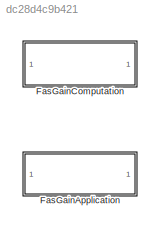
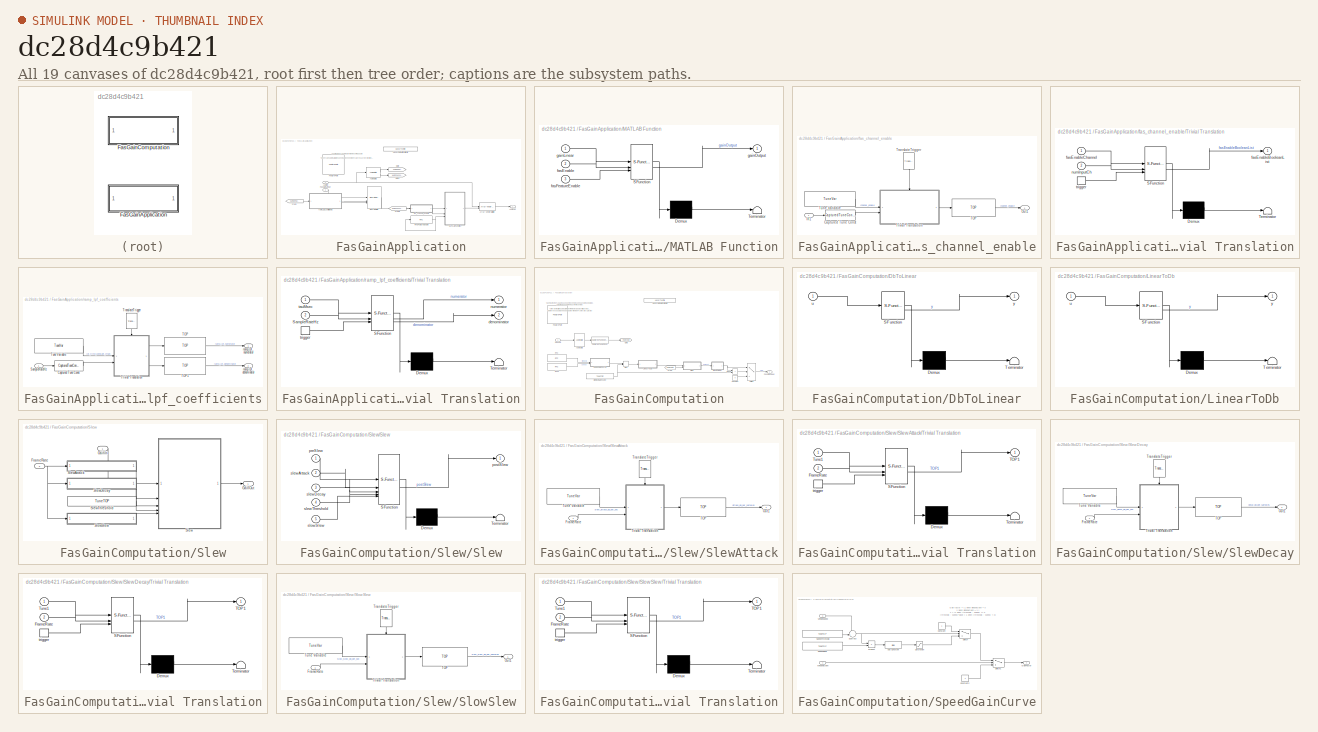
[diagram: thumbnail index - all 19 canvases of the model, root first then tree order]
MODEL slx_dc28d4c9b421
KIND library
CONFIG AbsTol = auto
CONFIG EnableMultiTasking = off
CONFIG FixedStep = auto
CONFIG MaxStep = auto
CONFIG MinStep = auto
CONFIG RelTol = 1e-3
CONFIG SampleTimeConstraint = Unconstrained
CONFIG SolverName = VariableStepAuto
CONFIG StartTime = 0.0
CONFIG StopTime = 10.0
BLOCK [SubSystem] FasGainApplication
BLOCK [Reference] FasGainApplication/Array-Vector Multiply  REF=dspmtrx3/Array-Vector
Multiply
  SourceBlock = dspmtrx3/Array-Vector\nMultiply
  SourceType = Array-Vector Multiply
BLOCK [Reference] FasGainApplication/Audio Stats  REF=AudioStats/AudioStats
  SourceBlock = AudioStats/AudioStats
  SourceProductName = Bose Talaria
  SourceType = Talaria Audio Statistics
BLOCK [Inport] FasGainApplication/AudioIn
BLOCK [Outport] FasGainApplication/AudioOut
BLOCK [DiscreteFilter] FasGainApplication/Discrete Filter
  DenominatorSource = Input port
  FilterStructure = Direct form II transposed
  InputPortMap = u0,p1,p3
  InputProcessing = Columns as channels (frame based)
  NumeratorSource = Input port
  a0EqualsOne = on
BLOCK [Inport] FasGainApplication/FasGainLinear
  OutDataTypeStr = single
  Port = 2
BLOCK [Reference] FasGainApplication/FeaturePath  REF=FeaturePath/FeaturePath
  SourceBlock = FeaturePath/FeaturePath
  SourceProductName = Bose Talaria
  SourceType = Talaria Feature Path
BLOCK [From] FasGainApplication/From
  GotoTag = SampleRateHz
BLOCK [From] FasGainApplication/From1
  GotoTag = NumChannelsIn
BLOCK [Goto] FasGainApplication/Goto
  GotoTag = SampleRateHz
BLOCK [Goto] FasGainApplication/Goto1
  GotoTag = NumChannelsIn
BLOCK [Reference] FasGainApplication/HandyDefaultConfigFile  REF=HandyTextFile/HandyTextFile
  SourceBlock = HandyTextFile/HandyTextFile
  SourceProductName = Bose Talaria
  SourceType = Talaria Handy Text File
BLOCK [SubSystem] FasGainApplication/MATLAB Function
  ErrorFcn = Stateflow.Translate.translate
  PermitHierarchicalResolution = ExplicitOnly
  SFBlockType = MATLAB Function
  TreatAsAtomicUnit = on
BLOCK [Demux] FasGainApplication/MATLAB Function/ Demux 
  Outputs = 1
BLOCK [S-Function] FasGainApplication/MATLAB Function/ SFunction 
  EnableBusSupport = off
  FunctionName = sf_sfun
  PortCounts = [3 2]
  SFcnIsStateOwnerBlock = off
  SFunctionDeploymentMode = off
  Tag = Stateflow S-Function 3
BLOCK [Terminator] FasGainApplication/MATLAB Function/ Terminator 
BLOCK [Inport] FasGainApplication/MATLAB Function/fasEnable
  Port = 2
BLOCK [Inport] FasGainApplication/MATLAB Function/fasFeatureEnable
  Port = 3
BLOCK [Inport] FasGainApplication/MATLAB Function/gainLinear
BLOCK [Outport] FasGainApplication/MATLAB Function/gainOutput
BLOCK [Reference] FasGainApplication/RTCFeatureEnable  REF=RTC/RTC
  SourceBlock = RTC/RTC
  SourceProductName = Bose Talaria
  SourceType = Talaria RTC Receive
BLOCK [SubSystem] FasGainApplication/fas_channel_enable
BLOCK [Reference] FasGainApplication/fas_channel_enable/Captured Tune Const  REF=TuneVar/CapturedTuneConst
  SourceBlock = TuneVar/CapturedTuneConst
  SourceProductName = Bose Talaria
  SourceType = Talaria Captured Constant
BLOCK [Inport] FasGainApplication/fas_channel_enable/In1
BLOCK [Outport] FasGainApplication/fas_channel_enable/Out1
  VectorParamsAs1DForOutWhenUnconnected = off
BLOCK [Reference] FasGainApplication/fas_channel_enable/TOP  REF=TOP/TOP
  SourceBlock = TOP/TOP
  SourceProductName = Bose Talaria
  SourceType = Talaria Target Overlay Parameter
BLOCK [Reference] FasGainApplication/fas_channel_enable/TranslateTrigger  REF=TuneVar/TranslateTrigger
  NameLocation = left
  SourceBlock = TuneVar/TranslateTrigger
  SourceProductName = Bose Talaria
  SourceType = Talaria Translate Trigger
BLOCK [SubSystem] FasGainApplication/fas_channel_enable/Trivial Translation
  ErrorFcn = Stateflow.Translate.translate
  PermitHierarchicalResolution = ExplicitOnly
  SFBlockType = MATLAB Function
  TreatAsAtomicUnit = on
BLOCK [Demux] FasGainApplication/fas_channel_enable/Trivial Translation/ Demux 
  Outputs = 1
BLOCK [S-Function] FasGainApplication/fas_channel_enable/Trivial Translation/ SFunction 
  EnableBusSupport = off
  FunctionName = sf_sfun
  PortCounts = [3 2]
  SFcnIsStateOwnerBlock = off
  SFunctionDeploymentMode = off
  Tag = Stateflow S-Function 4
BLOCK [Terminator] FasGainApplication/fas_channel_enable/Trivial Translation/ Terminator 
BLOCK [Outport] FasGainApplication/fas_channel_enable/Trivial Translation/fasEnableBooleanList
  VectorParamsAs1DForOutWhenUnconnected = off
BLOCK [Inport] FasGainApplication/fas_channel_enable/Trivial Translation/fasEnableChannel
BLOCK [Inport] FasGainApplication/fas_channel_enable/Trivial Translation/numInputCh
  Port = 2
BLOCK [TriggerPort] FasGainApplication/fas_channel_enable/Trivial Translation/trigger
  ShowOutputPort = on
  StatesWhenEnabling = held
  TriggerType = function-call
  VariantControl = Variant
BLOCK [Reference] FasGainApplication/fas_channel_enable/Tune Variable  REF=TuneVar/TuneVar
  SourceBlock = TuneVar/TuneVar
  SourceProductName = Bose Talaria
  SourceType = Talaria Tune Variable
BLOCK [SubSystem] FasGainApplication/ramp_lpf_coefficients
BLOCK [Reference] FasGainApplication/ramp_lpf_coefficients/Captured Tune Const  REF=TuneVar/CapturedTuneConst
  SourceBlock = TuneVar/CapturedTuneConst
  SourceProductName = Bose Talaria
  SourceType = Talaria Captured Constant
BLOCK [Inport] FasGainApplication/ramp_lpf_coefficients/SampleRateHz
BLOCK [Reference] FasGainApplication/ramp_lpf_coefficients/TOP  REF=TOP/TOP
  SourceBlock = TOP/TOP
  SourceProductName = Bose Talaria
  SourceType = Talaria Target Overlay Parameter
BLOCK [Reference] FasGainApplication/ramp_lpf_coefficients/TOP1  REF=TOP/TOP
  SourceBlock = TOP/TOP
  SourceProductName = Bose Talaria
  SourceType = Talaria Target Overlay Parameter
BLOCK [Reference] FasGainApplication/ramp_lpf_coefficients/TranslateTrigger  REF=TuneVar/TranslateTrigger
  NameLocation = left
  SourceBlock = TuneVar/TranslateTrigger
  SourceProductName = Bose Talaria
  SourceType = Talaria Translate Trigger
BLOCK [SubSystem] FasGainApplication/ramp_lpf_coefficients/Trivial Translation
  ErrorFcn = Stateflow.Translate.translate
  PermitHierarchicalResolution = ExplicitOnly
  SFBlockType = MATLAB Function
  TreatAsAtomicUnit = on
BLOCK [Demux] FasGainApplication/ramp_lpf_coefficients/Trivial Translation/ Demux 
  Outputs = 1
BLOCK [S-Function] FasGainApplication/ramp_lpf_coefficients/Trivial Translation/ SFunction 
  EnableBusSupport = off
  FunctionName = sf_sfun
  PortCounts = [3 3]
  SFcnIsStateOwnerBlock = off
  SFunctionDeploymentMode = off
  Tag = Stateflow S-Function 8
BLOCK [Terminator] FasGainApplication/ramp_lpf_coefficients/Trivial Translation/ Terminator 
BLOCK [Inport] FasGainApplication/ramp_lpf_coefficients/Trivial Translation/SampleRateHz
  Port = 2
BLOCK [Outport] FasGainApplication/ramp_lpf_coefficients/Trivial Translation/denominator
  Port = 2
BLOCK [Outport] FasGainApplication/ramp_lpf_coefficients/Trivial Translation/numerator
  VectorParamsAs1DForOutWhenUnconnected = off
BLOCK [Inport] FasGainApplication/ramp_lpf_coefficients/Trivial Translation/tauMsec
BLOCK [TriggerPort] FasGainApplication/ramp_lpf_coefficients/Trivial Translation/trigger
  ShowOutputPort = on
  StatesWhenEnabling = held
  TriggerType = function-call
  VariantControl = Variant
BLOCK [Reference] FasGainApplication/ramp_lpf_coefficients/Tune Variable  REF=TuneVar/TuneVar
  SourceBlock = TuneVar/TuneVar
  SourceProductName = Bose Talaria
  SourceType = Talaria Tune Variable
BLOCK [Outport] FasGainApplication/ramp_lpf_coefficients/ramp_lpf_denominator
  Port = 2
BLOCK [Outport] FasGainApplication/ramp_lpf_coefficients/ramp_lpf_numerator
  VectorParamsAs1DForOutWhenUnconnected = off
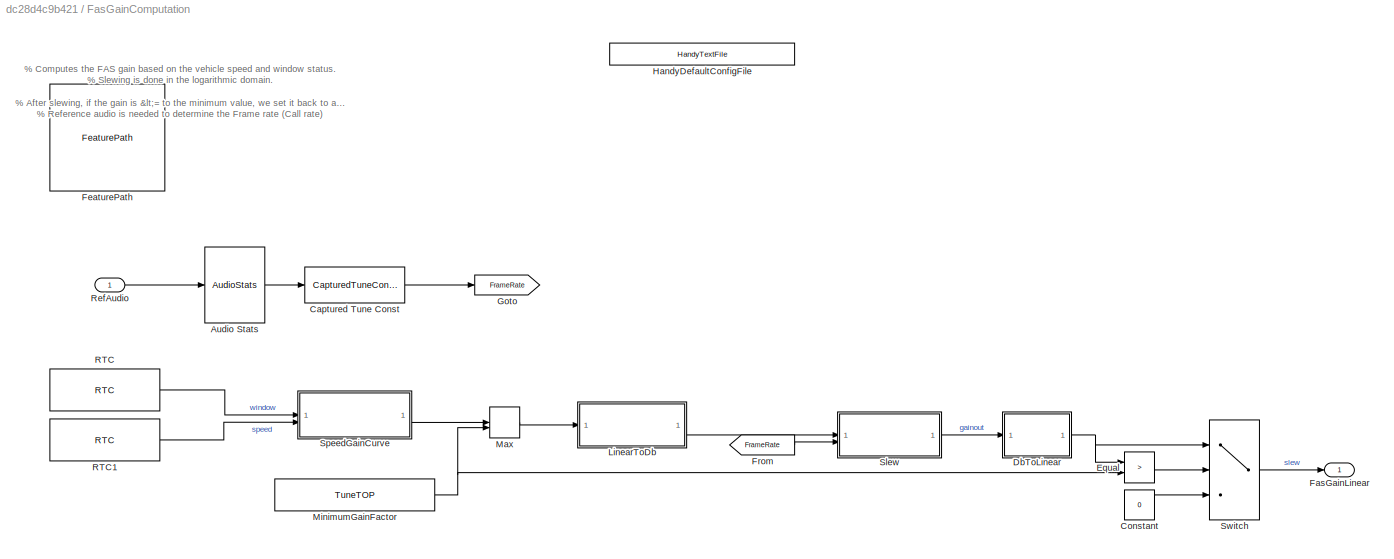
BLOCK [SubSystem] FasGainComputation
BLOCK [Reference] FasGainComputation/Audio Stats  REF=AudioStats/AudioStats
  SourceBlock = AudioStats/AudioStats
  SourceProductName = Bose Talaria
  SourceType = Talaria Audio Statistics
BLOCK [Reference] FasGainComputation/Captured Tune Const  REF=TuneVar/CapturedTuneConst
  SourceBlock = TuneVar/CapturedTuneConst
  SourceProductName = Bose Talaria
  SourceType = Talaria Captured Constant
BLOCK [Constant] FasGainComputation/Constant
  OutDataTypeStr = single
  Value = 0
BLOCK [SubSystem] FasGainComputation/DbToLinear
  ErrorFcn = Stateflow.Translate.translate
  PermitHierarchicalResolution = ExplicitOnly
  SFBlockType = MATLAB Function
  TreatAsAtomicUnit = on
BLOCK [Demux] FasGainComputation/DbToLinear/ Demux 
  Outputs = 1
BLOCK [S-Function] FasGainComputation/DbToLinear/ SFunction 
  EnableBusSupport = off
  FunctionName = sf_sfun
  PortCounts = [1 2]
  SFcnIsStateOwnerBlock = off
  SFunctionDeploymentMode = off
  Tag = Stateflow S-Function 1
BLOCK [Terminator] FasGainComputation/DbToLinear/ Terminator 
BLOCK [Inport] FasGainComputation/DbToLinear/u
BLOCK [Outport] FasGainComputation/DbToLinear/y
BLOCK [RelationalOperator] FasGainComputation/Equal
  InputSameDT = off
  Operator = >
  OutDataTypeStr = boolean
  RndMeth = Simplest
BLOCK [Outport] FasGainComputation/FasGainLinear
BLOCK [Reference] FasGainComputation/FeaturePath  REF=FeaturePath/FeaturePath
  SourceBlock = FeaturePath/FeaturePath
  SourceProductName = Bose Talaria
  SourceType = Talaria Feature Path
BLOCK [From] FasGainComputation/From
  GotoTag = FrameRate
BLOCK [Goto] FasGainComputation/Goto
  GotoTag = FrameRate
BLOCK [Reference] FasGainComputation/HandyDefaultConfigFile  REF=HandyTextFile/HandyTextFile
  SourceBlock = HandyTextFile/HandyTextFile
  SourceProductName = Bose Talaria
  SourceType = Talaria Handy Text File
BLOCK [SubSystem] FasGainComputation/LinearToDb
  ErrorFcn = Stateflow.Translate.translate
  PermitHierarchicalResolution = ExplicitOnly
  SFBlockType = MATLAB Function
  TreatAsAtomicUnit = on
BLOCK [Demux] FasGainComputation/LinearToDb/ Demux 
  Outputs = 1
BLOCK [S-Function] FasGainComputation/LinearToDb/ SFunction 
  EnableBusSupport = off
  FunctionName = sf_sfun
  PortCounts = [1 2]
  SFcnIsStateOwnerBlock = off
  SFunctionDeploymentMode = off
  Tag = Stateflow S-Function 2
BLOCK [Terminator] FasGainComputation/LinearToDb/ Terminator 
BLOCK [Inport] FasGainComputation/LinearToDb/u
BLOCK [Outport] FasGainComputation/LinearToDb/y
BLOCK [MinMax] FasGainComputation/Max
  Function = max
  Inputs = 2
BLOCK [Reference] FasGainComputation/MinimumGainFactor  REF=TuneVar/TuneTOP
  SourceBlock = TuneVar/TuneTOP
  SourceProductName = Bose Talaria
  SourceType = Talaria Trivial Tune TOP
BLOCK [Reference] FasGainComputation/RTC  REF=RTC/RTC
  SourceBlock = RTC/RTC
  SourceProductName = Bose Talaria
  SourceType = Talaria RTC Receive
BLOCK [Reference] FasGainComputation/RTC1  REF=RTC/RTC
  SourceBlock = RTC/RTC
  SourceProductName = Bose Talaria
  SourceType = Talaria RTC Receive
BLOCK [Inport] FasGainComputation/RefAudio
BLOCK [SubSystem] FasGainComputation/Slew
BLOCK [Inport] FasGainComputation/Slew/FrameRate
  Port = 2
BLOCK [Inport] FasGainComputation/Slew/GainIn
BLOCK [Outport] FasGainComputation/Slew/GainOut
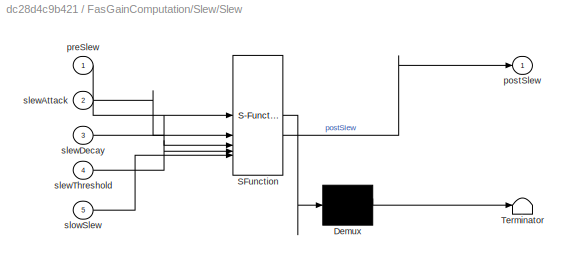
BLOCK [SubSystem] FasGainComputation/Slew/Slew
  ErrorFcn = Stateflow.Translate.translate
  PermitHierarchicalResolution = ExplicitOnly
  SFBlockType = MATLAB Function
  TreatAsAtomicUnit = on
BLOCK [Demux] FasGainComputation/Slew/Slew/ Demux 
  Outputs = 1
BLOCK [S-Function] FasGainComputation/Slew/Slew/ SFunction 
  EnableBusSupport = off
  FunctionName = sf_sfun
  PortCounts = [5 2]
  SFcnIsStateOwnerBlock = off
  SFunctionDeploymentMode = off
  Tag = Stateflow S-Function 9
BLOCK [Terminator] FasGainComputation/Slew/Slew/ Terminator 
BLOCK [Outport] FasGainComputation/Slew/Slew/postSlew
  VectorParamsAs1DForOutWhenUnconnected = off
BLOCK [Inport] FasGainComputation/Slew/Slew/preSlew
BLOCK [Inport] FasGainComputation/Slew/Slew/slewAttack
  Port = 2
BLOCK [Inport] FasGainComputation/Slew/Slew/slewDecay
  Port = 3
BLOCK [Inport] FasGainComputation/Slew/Slew/slewThreshold
  Port = 4
BLOCK [Inport] FasGainComputation/Slew/Slew/slowSlew
  Port = 5
BLOCK [SubSystem] FasGainComputation/Slew/SlewAttack
BLOCK [Inport] FasGainComputation/Slew/SlewAttack/FrameRate
BLOCK [Outport] FasGainComputation/Slew/SlewAttack/Out1
  VectorParamsAs1DForOutWhenUnconnected = off
BLOCK [Reference] FasGainComputation/Slew/SlewAttack/TOP  REF=TOP/TOP
  SourceBlock = TOP/TOP
  SourceProductName = Bose Talaria
  SourceType = Talaria Target Overlay Parameter
BLOCK [Reference] FasGainComputation/Slew/SlewAttack/TranslateTrigger  REF=TuneVar/TranslateTrigger
  NameLocation = left
  SourceBlock = TuneVar/TranslateTrigger
  SourceProductName = Bose Talaria
  SourceType = Talaria Translate Trigger
BLOCK [SubSystem] FasGainComputation/Slew/SlewAttack/Trivial Translation
  ErrorFcn = Stateflow.Translate.translate
  PermitHierarchicalResolution = ExplicitOnly
  SFBlockType = MATLAB Function
  TreatAsAtomicUnit = on
BLOCK [Demux] FasGainComputation/Slew/SlewAttack/Trivial Translation/ Demux 
  Outputs = 1
BLOCK [S-Function] FasGainComputation/Slew/SlewAttack/Trivial Translation/ SFunction 
  EnableBusSupport = off
  FunctionName = sf_sfun
  PortCounts = [3 2]
  SFcnIsStateOwnerBlock = off
  SFunctionDeploymentMode = off
  Tag = Stateflow S-Function 5
BLOCK [Terminator] FasGainComputation/Slew/SlewAttack/Trivial Translation/ Terminator 
BLOCK [Inport] FasGainComputation/Slew/SlewAttack/Trivial Translation/FrameRate
  Port = 2
BLOCK [Outport] FasGainComputation/Slew/SlewAttack/Trivial Translation/TOP1
  VectorParamsAs1DForOutWhenUnconnected = off
BLOCK [Inport] FasGainComputation/Slew/SlewAttack/Trivial Translation/Tune1
BLOCK [TriggerPort] FasGainComputation/Slew/SlewAttack/Trivial Translation/trigger
  ShowOutputPort = on
  StatesWhenEnabling = held
  TriggerType = function-call
  VariantControl = Variant
BLOCK [Reference] FasGainComputation/Slew/SlewAttack/Tune Variable  REF=TuneVar/TuneVar
  SourceBlock = TuneVar/TuneVar
  SourceProductName = Bose Talaria
  SourceType = Talaria Tune Variable
BLOCK [SubSystem] FasGainComputation/Slew/SlewDecay
BLOCK [Inport] FasGainComputation/Slew/SlewDecay/FrameRate
BLOCK [Outport] FasGainComputation/Slew/SlewDecay/Out1
  VectorParamsAs1DForOutWhenUnconnected = off
BLOCK [Reference] FasGainComputation/Slew/SlewDecay/TOP  REF=TOP/TOP
  SourceBlock = TOP/TOP
  SourceProductName = Bose Talaria
  SourceType = Talaria Target Overlay Parameter
BLOCK [Reference] FasGainComputation/Slew/SlewDecay/TranslateTrigger  REF=TuneVar/TranslateTrigger
  NameLocation = left
  SourceBlock = TuneVar/TranslateTrigger
  SourceProductName = Bose Talaria
  SourceType = Talaria Translate Trigger
BLOCK [SubSystem] FasGainComputation/Slew/SlewDecay/Trivial Translation
  ErrorFcn = Stateflow.Translate.translate
  PermitHierarchicalResolution = ExplicitOnly
  SFBlockType = MATLAB Function
  TreatAsAtomicUnit = on
BLOCK [Demux] FasGainComputation/Slew/SlewDecay/Trivial Translation/ Demux 
  Outputs = 1
BLOCK [S-Function] FasGainComputation/Slew/SlewDecay/Trivial Translation/ SFunction 
  EnableBusSupport = off
  FunctionName = sf_sfun
  PortCounts = [3 2]
  SFcnIsStateOwnerBlock = off
  SFunctionDeploymentMode = off
  Tag = Stateflow S-Function 6
BLOCK [Terminator] FasGainComputation/Slew/SlewDecay/Trivial Translation/ Terminator 
BLOCK [Inport] FasGainComputation/Slew/SlewDecay/Trivial Translation/FrameRate
  Port = 2
BLOCK [Outport] FasGainComputation/Slew/SlewDecay/Trivial Translation/TOP1
  VectorParamsAs1DForOutWhenUnconnected = off
BLOCK [Inport] FasGainComputation/Slew/SlewDecay/Trivial Translation/Tune1
BLOCK [TriggerPort] FasGainComputation/Slew/SlewDecay/Trivial Translation/trigger
  ShowOutputPort = on
  StatesWhenEnabling = held
  TriggerType = function-call
  VariantControl = Variant
BLOCK [Reference] FasGainComputation/Slew/SlewDecay/Tune Variable  REF=TuneVar/TuneVar
  SourceBlock = TuneVar/TuneVar
  SourceProductName = Bose Talaria
  SourceType = Talaria Tune Variable
BLOCK [Reference] FasGainComputation/Slew/SlewThreshold  REF=TuneVar/TuneTOP
  SourceBlock = TuneVar/TuneTOP
  SourceProductName = Bose Talaria
  SourceType = Talaria Trivial Tune TOP
BLOCK [SubSystem] FasGainComputation/Slew/SlowSlew
BLOCK [Inport] FasGainComputation/Slew/SlowSlew/FrameRate
BLOCK [Outport] FasGainComputation/Slew/SlowSlew/Out1
  VectorParamsAs1DForOutWhenUnconnected = off
BLOCK [Reference] FasGainComputation/Slew/SlowSlew/TOP  REF=TOP/TOP
  SourceBlock = TOP/TOP
  SourceProductName = Bose Talaria
  SourceType = Talaria Target Overlay Parameter
BLOCK [Reference] FasGainComputation/Slew/SlowSlew/TranslateTrigger  REF=TuneVar/TranslateTrigger
  NameLocation = left
  SourceBlock = TuneVar/TranslateTrigger
  SourceProductName = Bose Talaria
  SourceType = Talaria Translate Trigger
BLOCK [SubSystem] FasGainComputation/Slew/SlowSlew/Trivial Translation
  ErrorFcn = Stateflow.Translate.translate
  PermitHierarchicalResolution = ExplicitOnly
  SFBlockType = MATLAB Function
  TreatAsAtomicUnit = on
BLOCK [Demux] FasGainComputation/Slew/SlowSlew/Trivial Translation/ Demux 
  Outputs = 1
BLOCK [S-Function] FasGainComputation/Slew/SlowSlew/Trivial Translation/ SFunction 
  EnableBusSupport = off
  FunctionName = sf_sfun
  PortCounts = [3 2]
  SFcnIsStateOwnerBlock = off
  SFunctionDeploymentMode = off
  Tag = Stateflow S-Function 7
BLOCK [Terminator] FasGainComputation/Slew/SlowSlew/Trivial Translation/ Terminator 
BLOCK [Inport] FasGainComputation/Slew/SlowSlew/Trivial Translation/FrameRate
  Port = 2
BLOCK [Outport] FasGainComputation/Slew/SlowSlew/Trivial Translation/TOP1
  VectorParamsAs1DForOutWhenUnconnected = off
BLOCK [Inport] FasGainComputation/Slew/SlowSlew/Trivial Translation/Tune1
BLOCK [TriggerPort] FasGainComputation/Slew/SlowSlew/Trivial Translation/trigger
  ShowOutputPort = on
  StatesWhenEnabling = held
  TriggerType = function-call
  VariantControl = Variant
BLOCK [Reference] FasGainComputation/Slew/SlowSlew/Tune Variable  REF=TuneVar/TuneVar
  SourceBlock = TuneVar/TuneVar
  SourceProductName = Bose Talaria
  SourceType = Talaria Tune Variable
BLOCK [SubSystem] FasGainComputation/SpeedGainCurve
BLOCK [Bias] FasGainComputation/SpeedGainCurve/Add Constant
  Bias = single(1)
  SaturateOnIntegerOverflow = off
BLOCK [Constant] FasGainComputation/SpeedGainCurve/Constant
  OutDataTypeStr = single
BLOCK [Constant] FasGainComputation/SpeedGainCurve/Constant2
  OutDataTypeStr = single
BLOCK [Outport] FasGainComputation/SpeedGainCurve/GainFactor
BLOCK [Product] FasGainComputation/SpeedGainCurve/Product
BLOCK [Saturate] FasGainComputation/SpeedGainCurve/Saturation
  LowerLimit = 0
  OutDataTypeStr = single
  UpperLimit = 1
BLOCK [Reference] FasGainComputation/SpeedGainCurve/SpeedSlope  REF=TuneVar/TuneTOP
  SourceBlock = TuneVar/TuneTOP
  SourceProductName = Bose Talaria
  SourceType = Talaria Trivial Tune TOP
BLOCK [Reference] FasGainComputation/SpeedGainCurve/SpeedThreshold  REF=TuneVar/TuneTOP
  SourceBlock = TuneVar/TuneTOP
  SourceProductName = Bose Talaria
  SourceType = Talaria Trivial Tune TOP
BLOCK [Sum] FasGainComputation/SpeedGainCurve/Subtract
  Inputs = -+|
BLOCK [Switch] FasGainComputation/SpeedGainCurve/Switch
  InputSameDT = off
  OutDataTypeStr = single
  SaturateOnIntegerOverflow = off
BLOCK [Switch] FasGainComputation/SpeedGainCurve/Switch1
  Criteria = u2 ~= 0
  InputSameDT = off
  OutDataTypeStr = single
  SaturateOnIntegerOverflow = off
BLOCK [Inport] FasGainComputation/SpeedGainCurve/VehicleSpeed
  Port = 2
BLOCK [Inport] FasGainComputation/SpeedGainCurve/WindowOpen
BLOCK [Switch] FasGainComputation/Switch
  Criteria = u2 > Threshold
  InputSameDT = off
  SaturateOnIntegerOverflow = off
ANNOTATION FasGainApplication: % Applies the FAS gain factor to the incoming audio % The FAS enable is a list of channels which need the FAS pressure protection. FAS is disabled for all the remaining channels.
ANNOTATION FasGainComputation: % Computes the FAS gain based on the vehicle speed and window status. % Slewing is done in the logarithmic domain. % After slewing, if the gain is <= to the minimum value, we set it back to a linear gain of 0 % Reference audio is needed to determine the Frame rate (Call rate)
ANNOTATION FasGainComputation/SpeedGainCurve: Gain factor = {1 when windowOpen = 0 x when windowOpen = 1 } x = {1 when (threshold - speed) >= 0 (threshold - speed)*slope + 1 when (threshold - speed) < 0}
LINE FasGainApplication/Array-Vector Multiply:1 -> FasGainApplication/AudioOut:1
LINE FasGainApplication/Audio Stats:1 -> FasGainApplication/Goto:1
LINE FasGainApplication/Audio Stats:2 -> FasGainApplication/Goto1:1
NET FasGainApplication/AudioIn:1 -> FasGainApplication/Array-Vector Multiply:1, FasGainApplication/Audio Stats:1
LINE FasGainApplication/Discrete Filter:1 -> FasGainApplication/MATLAB Function:1
LINE FasGainApplication/FasGainLinear:1 -> FasGainApplication/Discrete Filter:1
LINE FasGainApplication/From1:1 -> FasGainApplication/fas_channel_enable:1
LINE FasGainApplication/From:1 -> FasGainApplication/ramp_lpf_coefficients:1
LINE FasGainApplication/MATLAB Function:1 -> FasGainApplication/Array-Vector Multiply:2
NET FasGainApplication/RTCFeatureEnable:1 -> FasGainApplication/MATLAB Function:3, FasGainApplication/RTCFeatureEnable:1
LINE FasGainApplication/fas_channel_enable/Captured Tune Const:1 -> FasGainApplication/fas_channel_enable/Trivial Translation:2
LINE FasGainApplication/fas_channel_enable/In1:1 -> FasGainApplication/fas_channel_enable/Captured Tune Const:1
LINE FasGainApplication/fas_channel_enable/TOP:1 -> FasGainApplication/fas_channel_enable/Out1:1
LINE FasGainApplication/fas_channel_enable/TranslateTrigger:1 -> FasGainApplication/fas_channel_enable/Trivial Translation:trigger
LINE FasGainApplication/fas_channel_enable/Trivial Translation:1 -> FasGainApplication/fas_channel_enable/TOP:1
LINE FasGainApplication/fas_channel_enable/Tune Variable:1 -> FasGainApplication/fas_channel_enable/Trivial Translation:1
LINE FasGainApplication/fas_channel_enable:1 -> FasGainApplication/MATLAB Function:2
LINE FasGainApplication/ramp_lpf_coefficients/Captured Tune Const:1 -> FasGainApplication/ramp_lpf_coefficients/Trivial Translation:2
LINE FasGainApplication/ramp_lpf_coefficients/SampleRateHz:1 -> FasGainApplication/ramp_lpf_coefficients/Captured Tune Const:1
LINE FasGainApplication/ramp_lpf_coefficients/TOP1:1 -> FasGainApplication/ramp_lpf_coefficients/ramp_lpf_denominator:1
LINE FasGainApplication/ramp_lpf_coefficients/TOP:1 -> FasGainApplication/ramp_lpf_coefficients/ramp_lpf_numerator:1
LINE FasGainApplication/ramp_lpf_coefficients/TranslateTrigger:1 -> FasGainApplication/ramp_lpf_coefficients/Trivial Translation:trigger
LINE FasGainApplication/ramp_lpf_coefficients/Trivial Translation:1 -> FasGainApplication/ramp_lpf_coefficients/TOP:1
LINE FasGainApplication/ramp_lpf_coefficients/Trivial Translation:2 -> FasGainApplication/ramp_lpf_coefficients/TOP1:1
LINE FasGainApplication/ramp_lpf_coefficients/Tune Variable:1 -> FasGainApplication/ramp_lpf_coefficients/Trivial Translation:1
LINE FasGainApplication/ramp_lpf_coefficients:1 -> FasGainApplication/Discrete Filter:2
LINE FasGainApplication/ramp_lpf_coefficients:2 -> FasGainApplication/Discrete Filter:3
LINE FasGainComputation/Audio Stats:1 -> FasGainComputation/Captured Tune Const:1
LINE FasGainComputation/Captured Tune Const:1 -> FasGainComputation/Goto:1
LINE FasGainComputation/Constant:1 -> FasGainComputation/Switch:3
NET FasGainComputation/DbToLinear:1 -> FasGainComputation/Equal:1, FasGainComputation/Switch:1
LINE FasGainComputation/Equal:1 -> FasGainComputation/Switch:2
LINE FasGainComputation/From:1 -> FasGainComputation/Slew:2
LINE FasGainComputation/LinearToDb:1 -> FasGainComputation/Slew:1
LINE FasGainComputation/Max:1 -> FasGainComputation/LinearToDb:1
NET FasGainComputation/MinimumGainFactor:1 -> FasGainComputation/Equal:2, FasGainComputation/Max:2
LINE FasGainComputation/RTC1:1 -> FasGainComputation/SpeedGainCurve:2
LINE FasGainComputation/RTC:1 -> FasGainComputation/SpeedGainCurve:1
LINE FasGainComputation/RefAudio:1 -> FasGainComputation/Audio Stats:1
NET FasGainComputation/Slew/FrameRate:1 -> FasGainComputation/Slew/SlewAttack:1, FasGainComputation/Slew/SlewDecay:1, FasGainComputation/Slew/SlowSlew:1
LINE FasGainComputation/Slew/GainIn:1 -> FasGainComputation/Slew/Slew:1
LINE FasGainComputation/Slew/Slew:1 -> FasGainComputation/Slew/GainOut:1
LINE FasGainComputation/Slew/SlewAttack/FrameRate:1 -> FasGainComputation/Slew/SlewAttack/Trivial Translation:2
LINE FasGainComputation/Slew/SlewAttack/TOP:1 -> FasGainComputation/Slew/SlewAttack/Out1:1
LINE FasGainComputation/Slew/SlewAttack/TranslateTrigger:1 -> FasGainComputation/Slew/SlewAttack/Trivial Translation:trigger
LINE FasGainComputation/Slew/SlewAttack/Trivial Translation:1 -> FasGainComputation/Slew/SlewAttack/TOP:1
LINE FasGainComputation/Slew/SlewAttack/Tune Variable:1 -> FasGainComputation/Slew/SlewAttack/Trivial Translation:1
LINE FasGainComputation/Slew/SlewAttack:1 -> FasGainComputation/Slew/Slew:2
LINE FasGainComputation/Slew/SlewDecay/FrameRate:1 -> FasGainComputation/Slew/SlewDecay/Trivial Translation:2
LINE FasGainComputation/Slew/SlewDecay/TOP:1 -> FasGainComputation/Slew/SlewDecay/Out1:1
LINE FasGainComputation/Slew/SlewDecay/TranslateTrigger:1 -> FasGainComputation/Slew/SlewDecay/Trivial Translation:trigger
LINE FasGainComputation/Slew/SlewDecay/Trivial Translation:1 -> FasGainComputation/Slew/SlewDecay/TOP:1
LINE FasGainComputation/Slew/SlewDecay/Tune Variable:1 -> FasGainComputation/Slew/SlewDecay/Trivial Translation:1
LINE FasGainComputation/Slew/SlewDecay:1 -> FasGainComputation/Slew/Slew:3
LINE FasGainComputation/Slew/SlewThreshold:1 -> FasGainComputation/Slew/Slew:4
LINE FasGainComputation/Slew/SlowSlew/FrameRate:1 -> FasGainComputation/Slew/SlowSlew/Trivial Translation:2
LINE FasGainComputation/Slew/SlowSlew/TOP:1 -> FasGainComputation/Slew/SlowSlew/Out1:1
LINE FasGainComputation/Slew/SlowSlew/TranslateTrigger:1 -> FasGainComputation/Slew/SlowSlew/Trivial Translation:trigger
LINE FasGainComputation/Slew/SlowSlew/Trivial Translation:1 -> FasGainComputation/Slew/SlowSlew/TOP:1
LINE FasGainComputation/Slew/SlowSlew/Tune Variable:1 -> FasGainComputation/Slew/SlowSlew/Trivial Translation:1
LINE FasGainComputation/Slew/SlowSlew:1 -> FasGainComputation/Slew/Slew:5
LINE FasGainComputation/Slew:1 -> FasGainComputation/DbToLinear:1
LINE FasGainComputation/SpeedGainCurve/Add Constant:1 -> FasGainComputation/SpeedGainCurve/Saturation:1
LINE FasGainComputation/SpeedGainCurve/Constant2:1 -> FasGainComputation/SpeedGainCurve/Switch1:3
LINE FasGainComputation/SpeedGainCurve/Constant:1 -> FasGainComputation/SpeedGainCurve/Switch:1
LINE FasGainComputation/SpeedGainCurve/Product:1 -> FasGainComputation/SpeedGainCurve/Add Constant:1
LINE FasGainComputation/SpeedGainCurve/Saturation:1 -> FasGainComputation/SpeedGainCurve/Switch:3
LINE FasGainComputation/SpeedGainCurve/SpeedSlope:1 -> FasGainComputation/SpeedGainCurve/Product:2
LINE FasGainComputation/SpeedGainCurve/SpeedThreshold:1 -> FasGainComputation/SpeedGainCurve/Subtract:2
NET FasGainComputation/SpeedGainCurve/Subtract:1 -> FasGainComputation/SpeedGainCurve/Product:1, FasGainComputation/SpeedGainCurve/Switch:2
LINE FasGainComputation/SpeedGainCurve/Switch1:1 -> FasGainComputation/SpeedGainCurve/GainFactor:1
LINE FasGainComputation/SpeedGainCurve/Switch:1 -> FasGainComputation/SpeedGainCurve/Switch1:1
LINE FasGainComputation/SpeedGainCurve/VehicleSpeed:1 -> FasGainComputation/SpeedGainCurve/Subtract:1
LINE FasGainComputation/SpeedGainCurve/WindowOpen:1 -> FasGainComputation/SpeedGainCurve/Switch1:2
LINE FasGainComputation/SpeedGainCurve:1 -> FasGainComputation/Max:1
LINE FasGainComputation/Switch:1 -> FasGainComputation/FasGainLinear:1
note: NET lines group one-source signal fan-out (src -> all destinations, sorted); 1:1 wires keep LINE
CHART FasGainComputation/DbToLinear states=1 transitions=1
  STATE_LABEL 'eML_blk_kernel()'
  STATE_LABEL 'SCRIPT:\nfunction y = dB_to_linear(u)\n\n% Convert gain from dB to linear\ny = single( 10 ^ (u/20) );\n'
CHART FasGainComputation/LinearToDb states=1 transitions=1
  STATE_LABEL 'eML_blk_kernel()'
  STATE_LABEL 'SCRIPT:\nfunction y = linear_to_dB(u)\n\n% Convert gain from linear to dB\ny = single(20 * log10(u));\n'
CHART FasGainApplication/MATLAB Function states=1 transitions=1
  STATE_LABEL 'eML_blk_kernel()'
  STATE_LABEL "SCRIPT:\nfunction gainOutput = fcn(gainLinear, fasEnable, fasFeatureEnable)\n% For channels which have FAS enabled, use the FAS gain. For channels which\n% have FAS disabled, use a default gain of 1.\n% gainOutput size is also defined in the Edit Data options.\n\ngainOutput = coder.nullcopy(zeros(size(fasEnable),'single'));\ngainOutput = ones(size(fasEnable),'single');\nif fasFeatureEnable == uint32(1)\n  ...<+88ch>"
CHART FasGainApplication/fas_channel_enable/Trivial Translation states=1 transitions=1
  STATE_LABEL 'eML_blk_kernel()'
  STATE_LABEL 'SCRIPT:\nfunction fasEnableBooleanList  = fcn(fasEnableChannel, numInputCh)\n%#codegen\n% "fasEnableChannel" : integer array containing a \'1\' or a \'0\' based on\n% whether FAS is needed or not\n\nargName = \'FAS\';\n\n% Ensure each channel is present in the enable list\nnumChannelEnables = numel(fasEnableChannel.Value);\nif (numChannelEnables ~= numInputCh)\n   TranslateError([\'Error in %s : Number of channels ...<+253ch>'
CHART FasGainComputation/Slew/SlewAttack/Trivial Translation states=1 transitions=1
  STATE_LABEL 'eML_blk_kernel()'
  STATE_LABEL 'SCRIPT:\nfunction TOP1  = fcn(Tune1, FrameRate)\n\n% Translation to convert from attack_db_per_second to attack_db_per_sample\nTOP1 = Tune1.Value / FrameRate;\n'
CHART FasGainComputation/Slew/SlewDecay/Trivial Translation states=1 transitions=1
  STATE_LABEL 'eML_blk_kernel()'
  STATE_LABEL 'SCRIPT:\nfunction TOP1  = fcn(Tune1, FrameRate)\n\n% Translation to convert from slew_decay_db_per_second to \n% slew_decay_db_per_sample\nTOP1 = -abs(Tune1.Value / FrameRate);'
CHART FasGainComputation/Slew/SlowSlew/Trivial Translation states=1 transitions=1
  STATE_LABEL 'eML_blk_kernel()'
  STATE_LABEL 'SCRIPT:\nfunction TOP1  = fcn(Tune1, FrameRate)\n\n% Translation to convert from slow_slew_db_per_second to \n% slow_slew_db_per_sample\nTOP1 = (Tune1.Value / FrameRate);'
CHART FasGainApplication/ramp_lpf_coefficients/Trivial Translation states=1 transitions=1
  STATE_LABEL 'eML_blk_kernel()'
  STATE_LABEL 'SCRIPT:\nfunction [numerator, denominator] = fcn(tauMsec, SampleRateHz)\n%#codegen\n\n% Convert lpf time constant into numerator and \n% denominator \ntauSec = tauMsec.Value / 1000;\nfcHz = 1 / tauSec;\nwc = 2 * pi * fcHz / SampleRateHz;\nCoef = (1 - sin(wc)) / cos(wc);\n\nnumerator = [(1-Coef)] ;\ndenominator = [1, -Coef];\n'
CHART FasGainComputation/Slew/Slew states=1 transitions=1
  STATE_LABEL 'eML_blk_kernel()'
  STATE_LABEL 'SCRIPT:\nfunction postSlew = Slew(preSlew, ...\n\tslewAttack, slewDecay, slewThreshold, slowSlew)\n\t\npersistent prevChange prevDelta prevPostSlew;\nif isempty(prevChange); prevChange = single(0);  end\nif isempty(prevDelta); prevDelta = single(0);  end\nif isempty(prevPostSlew); prevPostSlew = single(0);  end\n\ndelta = preSlew - prevPostSlew;\n\nif delta > 0                              % setup for positive...<+786ch>'
CHART  states=0 transitions=0
CHART  states=0 transitions=0
CHART  states=0 transitions=0
CHART  states=0 transitions=0
CHART  states=0 transitions=0
CHART  states=0 transitions=0
CHART  states=0 transitions=0
CHART  states=0 transitions=0
CHART  states=0 transitions=0
